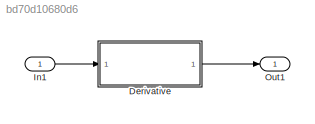
MODEL slx_bd70d10680d6
KIND model
CONFIG AbsTol = auto
CONFIG FixedStep = auto
CONFIG MaxStep = auto
CONFIG MinStep = auto
CONFIG RelTol = 1e-3
CONFIG SampleTimeConstraint = Unconstrained
CONFIG Solver = ode1
CONFIG SolverMode = Auto
CONFIG SolverName = ode1
CONFIG StartTime = 0.0
CONFIG StopTime = 10.0
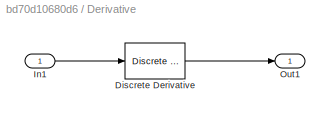
BLOCK [SubSystem] Derivative
  Ports = [1, 1]
  RequestExecContextInheritance = off
BLOCK [Reference] Derivative/Discrete Derivative  REF=simulink/Discrete/Discrete Derivative
  DoSatur = off
  ICPrevScaledInput = 0.0
  InputProcessing = Inherited
  LockScale = off
  OutDataType = fixdt(1, 16)
  OutDataTypeStr = Inherit: Inherit via internal rule
  OutMax = []
  OutMin = []
  OutScaling = 2^-10
  OutputDataTypeScalingMode = Inherit via internal rule
  Ports = [1, 1]
  RndMeth = Floor
  SourceBlock = simulink/Discrete/Discrete Derivative
  SourceType = Discrete Derivative
  gainval = 1.0
BLOCK [Inport] Derivative/In1
  IconDisplay = Port number
BLOCK [Outport] Derivative/Out1
  IconDisplay = Port number
BLOCK [Inport] In1
  IconDisplay = Port number
  OutDataTypeStr = single
BLOCK [Outport] Out1
  IconDisplay = Port number
LINE Derivative/Discrete Derivative:1 -> Derivative/Out1:1
LINE Derivative/In1:1 -> Derivative/Discrete Derivative:1
LINE Derivative:1 -> Out1:1
LINE In1:1 -> Derivative:1
